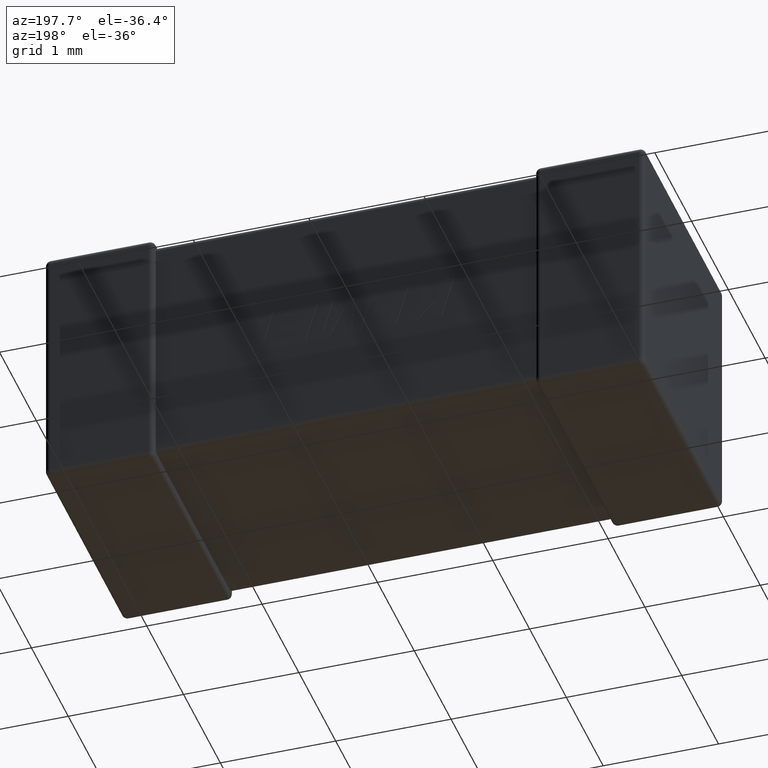
[diagram: clean part render]
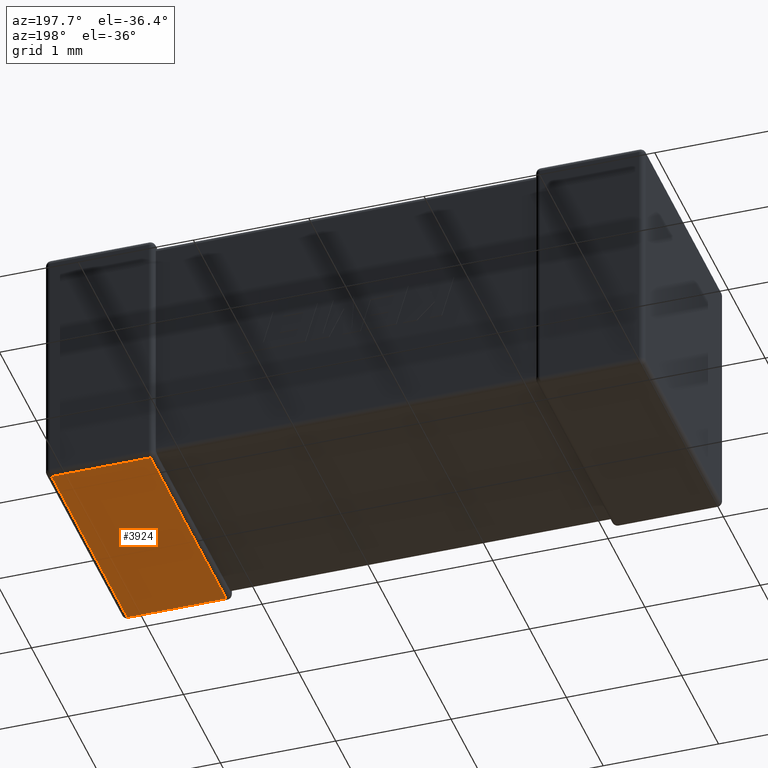
[diagram: same view with one face highlighted and labeled with its STEP entity id]
A machine part, auxiliary view. The second image highlights one B-rep face of the part: STEP entity #3924.
In plain terms, the highlighted planar face has unit normal (0, 0, 1).
Its self-contained STEP definition (entity closure, byte-faithful):
#317 = DIRECTION ( 'NONE',  ( 1.000000000000000000, -0.0000000000000000000, -0.0000000000000000000 ) ) ;
#1039 = DIRECTION ( 'NONE',  ( 0.0000000000000000000, 0.0000000000000000000, 1.000000000000000000 ) ) ;
#1109 = DIRECTION ( 'NONE',  ( 0.0000000000000000000, 1.000000000000000000, 0.0000000000000000000 ) ) ;
#1250 = ORIENTED_EDGE ( 'NONE', *, *, #3447, .T. ) ;
#1252 = CARTESIAN_POINT ( 'NONE',  ( 5.154239999999999700, 0.04576000000000000200, -2.200000000000000200 ) ) ;
#1281 = CARTESIAN_POINT ( 'NONE',  ( 4.295759999999999600, 0.04576000000000000200, -2.200000000000000200 ) ) ;
#1389 = CARTESIAN_POINT ( 'NONE',  ( 4.295759999999999600, 2.104239999999999900, -2.200000000000000200 ) ) ;
#1767 = VECTOR ( 'NONE', #2381, 1000.000000000000000 ) ;
#1775 = CARTESIAN_POINT ( 'NONE',  ( 4.295759999999999600, 0.0000000000000000000, -2.200000000000000200 ) ) ;
#1776 = VECTOR ( 'NONE', #317, 1000.000000000000000 ) ;
#1913 = EDGE_CURVE ( 'NONE', #3735, #4031, #3781, .T. ) ;
#1994 = CARTESIAN_POINT ( 'NONE',  ( 5.200000000000000200, 2.104239999999999900, -2.200000000000000200 ) ) ;
#2037 = CARTESIAN_POINT ( 'NONE',  ( 5.200000000000000200, 0.04576000000000000200, -2.200000000000000200 ) ) ;
#2381 = DIRECTION ( 'NONE',  ( -1.000000000000000000, -0.0000000000000000000, 0.0000000000000000000 ) ) ;
#2426 = VECTOR ( 'NONE', #3086, 1000.000000000000000 ) ;
#2636 = EDGE_LOOP ( 'NONE', ( #2776, #3252, #1250, #4557 ) ) ;
#2694 = CARTESIAN_POINT ( 'NONE',  ( 5.154239999999999700, 0.0000000000000000000, -2.200000000000000200 ) ) ;
#2771 = LINE ( 'NONE', #1994, #1776 ) ;
#2776 = ORIENTED_EDGE ( 'NONE', *, *, #3012, .T. ) ;
#2811 = DIRECTION ( 'NONE',  ( 1.000000000000000000, 0.0000000000000000000, -0.0000000000000000000 ) ) ;
#2963 = CARTESIAN_POINT ( 'NONE',  ( 5.154239999999999700, 2.104239999999999900, -2.200000000000000200 ) ) ;
#3010 = FACE_OUTER_BOUND ( 'NONE', #2636, .T. ) ;
#3012 = EDGE_CURVE ( 'NONE', #4031, #4129, #2771, .T. ) ;
#3086 = DIRECTION ( 'NONE',  ( -0.0000000000000000000, -1.000000000000000000, 0.0000000000000000000 ) ) ;
#3118 = CARTESIAN_POINT ( 'NONE',  ( 5.200000000000000200, 0.0000000000000000000, -2.200000000000000200 ) ) ;
#3148 = PLANE ( 'NONE',  #3663 ) ;
#3252 = ORIENTED_EDGE ( 'NONE', *, *, #3534, .T. ) ;
#3411 = LINE ( 'NONE', #2694, #2426 ) ;
#3447 = EDGE_CURVE ( 'NONE', #3838, #3735, #3702, .T. ) ;
#3534 = EDGE_CURVE ( 'NONE', #4129, #3838, #3411, .T. ) ;
#3663 = AXIS2_PLACEMENT_3D ( 'NONE', #3118, #1039, #2811 ) ;
#3702 = LINE ( 'NONE', #2037, #1767 ) ;
#3735 = VERTEX_POINT ( 'NONE', #1281 ) ;
#3781 = LINE ( 'NONE', #1775, #4279 ) ;
#3838 = VERTEX_POINT ( 'NONE', #1252 ) ;
#3924 = ADVANCED_FACE ( 'NONE', ( #3010 ), #3148, .F. ) ;
#4031 = VERTEX_POINT ( 'NONE', #1389 ) ;
#4129 = VERTEX_POINT ( 'NONE', #2963 ) ;
#4279 = VECTOR ( 'NONE', #1109, 1000.000000000000000 ) ;
#4557 = ORIENTED_EDGE ( 'NONE', *, *, #1913, .T. ) ;